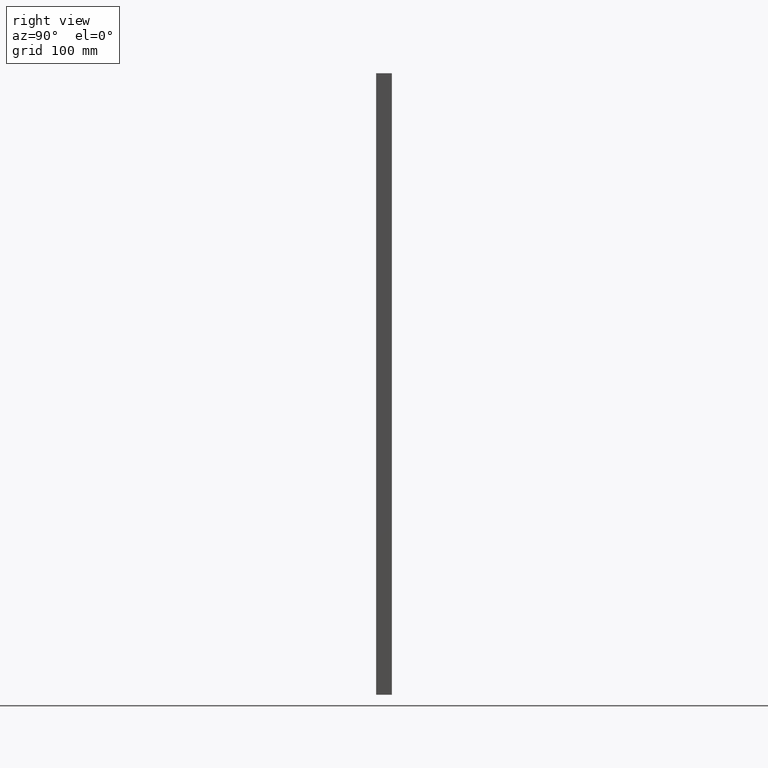
[diagram: clean part render]
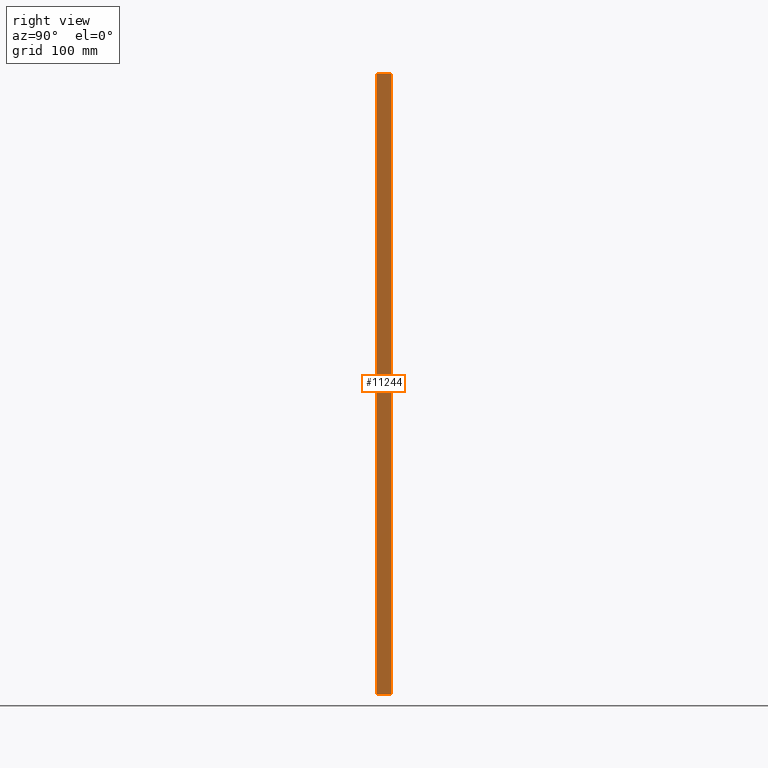
[diagram: same view with one face highlighted and labeled with its STEP entity id]
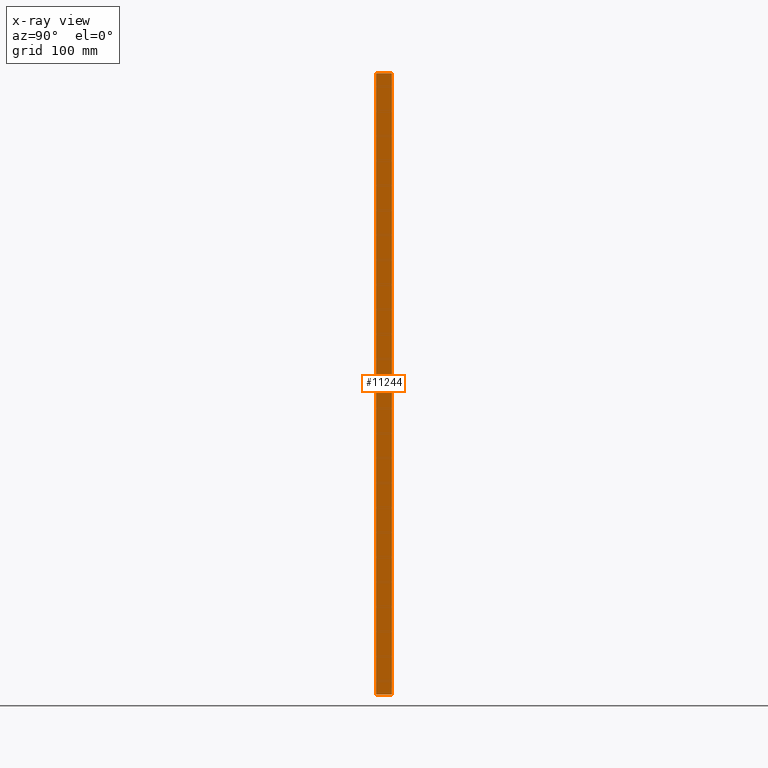
[diagram: x-ray of the same camera — body ghosted, the highlighted face saturated]
A machine part, right view. The second image highlights one B-rep face of the part: STEP entity #11244.
The next image is the same camera in x-ray: the body ghosted, the highlighted face saturated — about 0% of this face is hidden behind the body in this view.
In plain terms, the highlighted planar face has unit normal (1, -0, -0).
Its self-contained STEP definition (entity closure, byte-faithful):
#4314 = VECTOR ( 'NONE', #19719, 1000.000000000000000 ) ;
#4432 = CARTESIAN_POINT ( 'NONE',  ( 489.9999999999998900, -10.00000000000000000, -790.0000000000000000 ) ) ;
#6586 = CARTESIAN_POINT ( 'NONE',  ( 490.0000000000001700, 10.00000000000000000, -790.0000000000000000 ) ) ;
#8538 = CARTESIAN_POINT ( 'NONE',  ( 490.0000000000000000, -10.00000000000000000, -5.551115123125782700E-014 ) ) ;
#9267 = CARTESIAN_POINT ( 'NONE',  ( 490.0000000000001700, 10.00000000000000000, -790.0000000000000000 ) ) ;
#10014 = CARTESIAN_POINT ( 'NONE',  ( 489.9999999999999400, 9.999999999999865000, -790.0000000000000000 ) ) ;
#11244 = ADVANCED_FACE ( 'NONE', ( #55919 ), #32414, .T. ) ;
#11782 = ORIENTED_EDGE ( 'NONE', *, *, #21277, .T. ) ;
#13592 = DIRECTION ( 'NONE',  ( 1.000000000000000000, -3.061616997868382600E-016, -1.405345600791337500E-016 ) ) ;
#15466 = VECTOR ( 'NONE', #53679, 1000.000000000000000 ) ;
#17249 = EDGE_CURVE ( 'NONE', #58101, #52869, #31601, .T. ) ;
#17738 = DIRECTION ( 'NONE',  ( 1.405345600791337500E-016, 0.0000000000000000000, 1.000000000000000000 ) ) ;
#17752 = VERTEX_POINT ( 'NONE', #8538 ) ;
#19719 = DIRECTION ( 'NONE',  ( -3.061616997868383100E-016, -1.000000000000000000, -3.061616997868382200E-016 ) ) ;
#21277 = EDGE_CURVE ( 'NONE', #52869, #33990, #36020, .T. ) ;
#22176 = CARTESIAN_POINT ( 'NONE',  ( 489.9999999999999400, 9.999999999999865000, -790.0000000000000000 ) ) ;
#26693 = VECTOR ( 'NONE', #53631, 1000.000000000000000 ) ;
#28613 = EDGE_CURVE ( 'NONE', #33990, #17752, #54342, .T. ) ;
#28724 = CARTESIAN_POINT ( 'NONE',  ( 490.0000000000000600, 9.999999999999623400, -1.110223024625156500E-013 ) ) ;
#31601 = LINE ( 'NONE', #22176, #15466 ) ;
#32414 = PLANE ( 'NONE',  #49585 ) ;
#33990 = VERTEX_POINT ( 'NONE', #42697 ) ;
#36020 = LINE ( 'NONE', #9267, #39545 ) ;
#39545 = VECTOR ( 'NONE', #17738, 1000.000000000000000 ) ;
#39949 = EDGE_LOOP ( 'NONE', ( #11782, #52955, #45598, #49004 ) ) ;
#42077 = DIRECTION ( 'NONE',  ( 3.061616997868382600E-016, 1.000000000000000000, 0.0000000000000000000 ) ) ;
#42697 = CARTESIAN_POINT ( 'NONE',  ( 490.0000000000002300, 10.00000000000000200, 1.110223024625156500E-013 ) ) ;
#44567 = EDGE_CURVE ( 'NONE', #58101, #17752, #53522, .T. ) ;
#45598 = ORIENTED_EDGE ( 'NONE', *, *, #44567, .F. ) ;
#49004 = ORIENTED_EDGE ( 'NONE', *, *, #17249, .T. ) ;
#49585 = AXIS2_PLACEMENT_3D ( 'NONE', #10014, #13592, #42077 ) ;
#52869 = VERTEX_POINT ( 'NONE', #6586 ) ;
#52955 = ORIENTED_EDGE ( 'NONE', *, *, #28613, .T. ) ;
#53522 = LINE ( 'NONE', #4432, #26693 ) ;
#53631 = DIRECTION ( 'NONE',  ( 1.405345600791337500E-016, 0.0000000000000000000, 1.000000000000000000 ) ) ;
#53679 = DIRECTION ( 'NONE',  ( 3.061616997868381700E-016, 1.000000000000000000, -3.061616997868382200E-016 ) ) ;
#54342 = LINE ( 'NONE', #28724, #4314 ) ;
#55267 = CARTESIAN_POINT ( 'NONE',  ( 489.9999999999998900, -10.00000000000000000, -790.0000000000000000 ) ) ;
#55919 = FACE_OUTER_BOUND ( 'NONE', #39949, .T. ) ;
#58101 = VERTEX_POINT ( 'NONE', #55267 ) ;